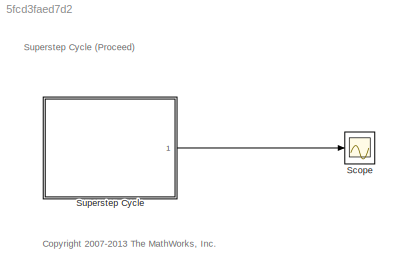
MODEL slx_5fcd3faed7d2
KIND model
CONFIG AbsTol = auto
CONFIG EnableMultiTasking = on
CONFIG FixedStep = 1
CONFIG MaxStep = auto
CONFIG MinStep = auto
CONFIG RelTol = 1e-3
CONFIG SampleTimeConstraint = Unconstrained
CONFIG Solver = FixedStepDiscrete
CONFIG SolverName = FixedStepDiscrete
CONFIG StartTime = 0.0
CONFIG StopTime = 10.0
BLOCK [Scope] Scope
  NumInputPorts = 1
  Ports = [1]
  ScopeSpecificationString = Simulink.scopes.TimeScopeBlockCfg('CurrentConfiguration', extmgr.ConfigurationSet(extmgr.Configuration('Core','General UI',true),extmgr.Configuration('Core','Source UI',true),extmgr.Configuration('Sources','WiredSimulink',true,'DataLoggingSaveFormat','StructureWithTime','DataLoggingLimitDataPoints',true,'DataLoggingDecimation','1'),extmgr.Configuration('Visuals','Time Domain',true,'DisplayProperty...<+980ch>
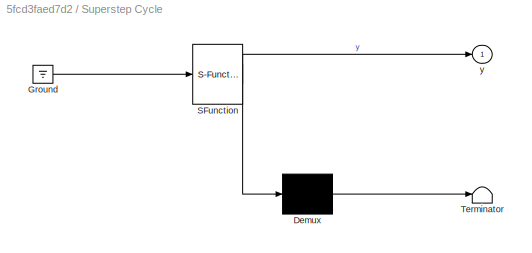
BLOCK [SubSystem] Superstep Cycle
  ErrorFcn = Stateflow.Translate.translate
  PermitHierarchicalResolution = ExplicitOnly
  Ports = [0, 1]
  RequestExecContextInheritance = off
  SFBlockType = Chart
  TreatAsAtomicUnit = on
  Variant = off
BLOCK [Demux] Superstep Cycle/ Demux 
  Outputs = 1
  Ports = [1, 1]
BLOCK [Ground] Superstep Cycle/ Ground 
BLOCK [S-Function] Superstep Cycle/ SFunction 
  EnableBusSupport = off
  FunctionName = sf_sfun
  PortCounts = [1 2]
  Ports = [1, 2]
  SFcnIsStateOwnerBlock = off
  SFunctionDeploymentMode = off
  Tag = Stateflow S-Function sf_superstep_cycle_proceed 2
BLOCK [Terminator] Superstep Cycle/ Terminator 
BLOCK [Outport] Superstep Cycle/y
  IconDisplay = Port number
ANNOTATION (root): <copyright redacted>
ANNOTATION (root): Superstep Cycle (Proceed)
LINE Superstep Cycle:1 -> Scope:1
CHART Superstep Cycle states=2 transitions=3
  STATE_LABEL 'A\nen: y = 1;'
  STATE_LABEL 'B\nen: y = 2;'
